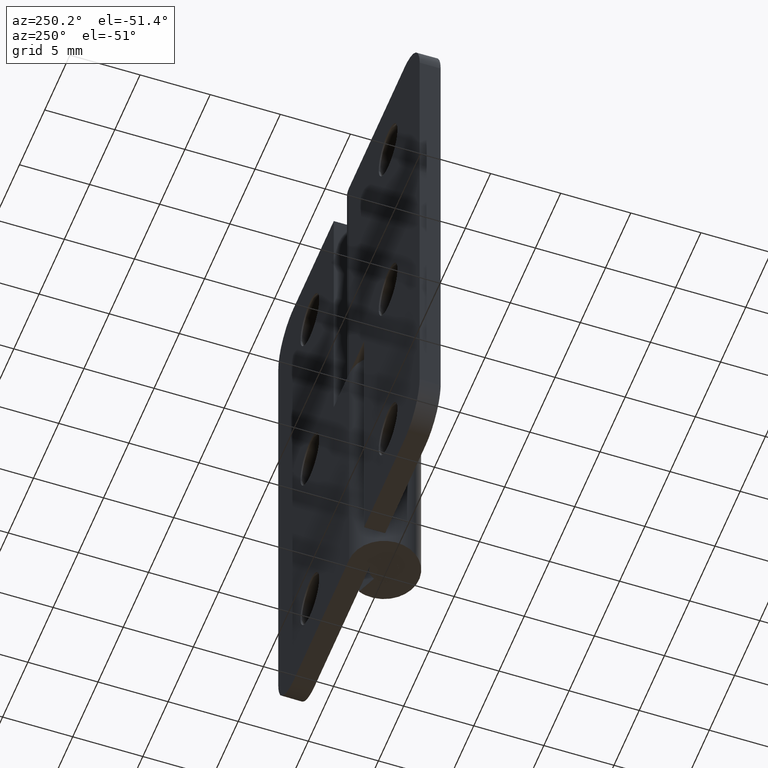
[diagram: clean part render]
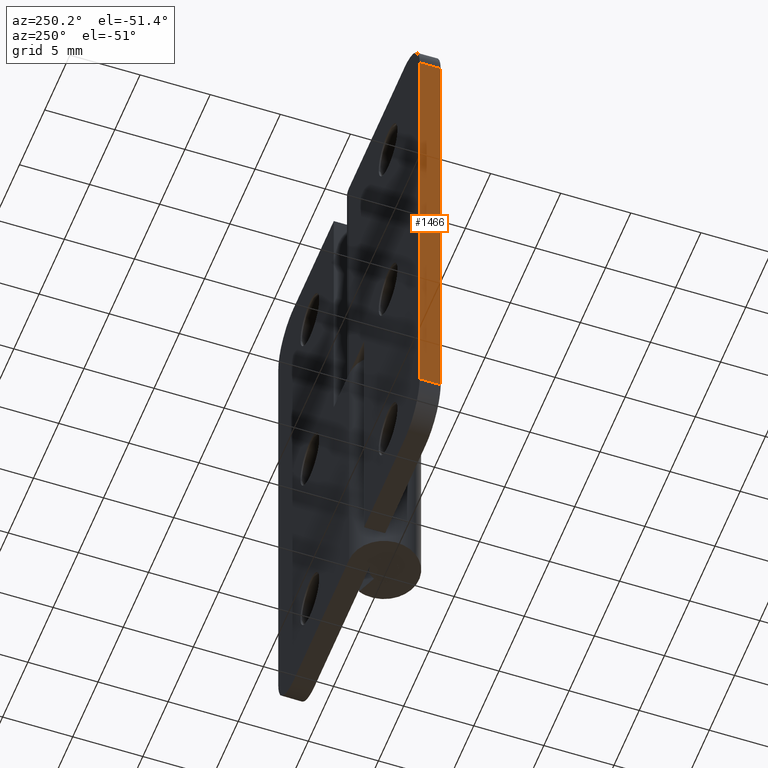
[diagram: same view with one face highlighted and labeled with its STEP entity id]
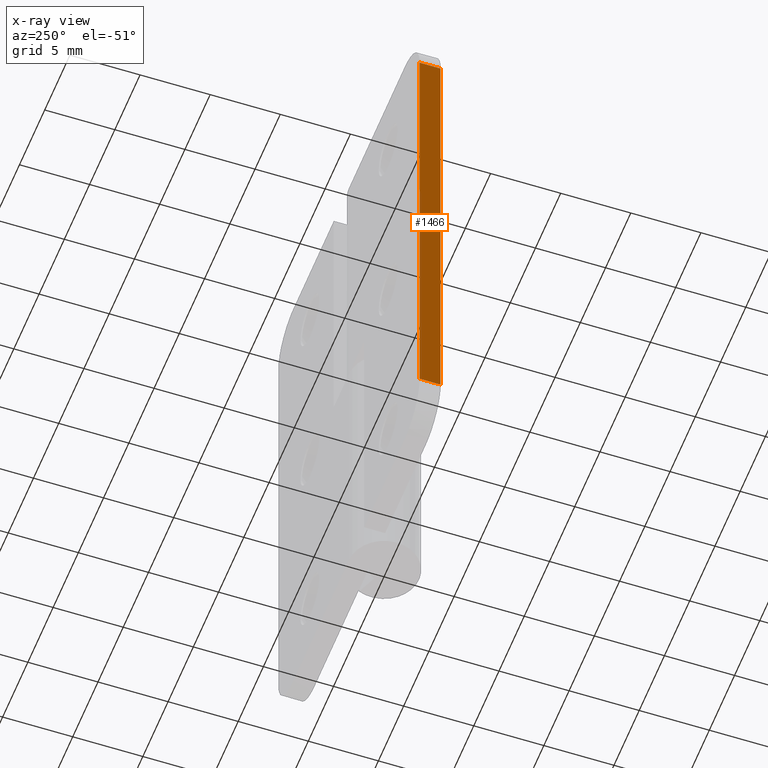
[diagram: x-ray of the same camera — body ghosted, the highlighted face saturated]
A machine part, auxiliary view. The second image highlights one B-rep face of the part: STEP entity #1466.
The next image is the same camera in x-ray: the body ghosted, the highlighted face saturated — about 0% of this face is hidden behind the body in this view.
In plain terms, the highlighted face is a freeform B-spline surface patch.
Its self-contained STEP definition (entity closure, byte-faithful):
#1196=CARTESIAN_POINT('',(-14.0,1.0,36.999991999999963));
#1197=VERTEX_POINT('',#1196);
#1220=CARTESIAN_POINT('',(-14.0,2.500000000000000,36.999991999999963));
#1221=VERTEX_POINT('',#1220);
#1235=CARTESIAN_POINT('',(-14.0,2.500000000000000,36.999991999999963));
#1236=CARTESIAN_POINT('',(-14.0,1.0,36.999991999999963));
#1237=QUASI_UNIFORM_CURVE('',1,(#1235,#1236),.UNSPECIFIED.,.F.,.U.);
#1238=EDGE_CURVE('',#1221,#1197,#1237,.T.);
#1259=CARTESIAN_POINT('',(-14.0,1.0,3.0));
#1260=VERTEX_POINT('',#1259);
#1274=CARTESIAN_POINT('',(-14.0,2.500000000000000,3.0));
#1275=VERTEX_POINT('',#1274);
#1276=CARTESIAN_POINT('',(-14.0,1.0,3.0));
#1277=CARTESIAN_POINT('',(-14.0,2.500000000000000,3.0));
#1278=QUASI_UNIFORM_CURVE('',1,(#1276,#1277),.UNSPECIFIED.,.F.,.U.);
#1279=EDGE_CURVE('',#1260,#1275,#1278,.T.);
#1447=CARTESIAN_POINT('',(-14.0,2.574924997092709,38.698292172836581));
#1448=CARTESIAN_POINT('',(-14.0,2.574924997092709,1.301699523179775));
#1449=CARTESIAN_POINT('',(-14.0,0.925074962674156,38.698292172836581));
#1450=CARTESIAN_POINT('',(-14.0,0.925074962674156,1.301699523179775));
#1451=B_SPLINE_SURFACE_WITH_KNOTS('',1,1,((#1447,#1449),(#1448,#1450)),.UNSPECIFIED.,.F.,.F.,.U.,(2,2),(2,2),(0.0,37.396592649656803),(0.041708334948495,0.958291687403247),.UNSPECIFIED.);
#1452=CARTESIAN_POINT('',(-14.0,1.0,3.0));
#1453=CARTESIAN_POINT('',(-14.0,1.0,36.999991999999963));
#1454=QUASI_UNIFORM_CURVE('',1,(#1452,#1453),.UNSPECIFIED.,.F.,.U.);
#1455=EDGE_CURVE('',#1260,#1197,#1454,.T.);
#1456=ORIENTED_EDGE('',*,*,#1455,.T.);
#1457=ORIENTED_EDGE('',*,*,#1238,.F.);
#1458=CARTESIAN_POINT('',(-14.0,2.500000000000000,3.0));
#1459=CARTESIAN_POINT('',(-14.0,2.500000000000000,36.999991999999963));
#1460=QUASI_UNIFORM_CURVE('',1,(#1458,#1459),.UNSPECIFIED.,.F.,.U.);
#1461=EDGE_CURVE('',#1275,#1221,#1460,.T.);
#1462=ORIENTED_EDGE('',*,*,#1461,.F.);
#1463=ORIENTED_EDGE('',*,*,#1279,.F.);
#1464=EDGE_LOOP('',(#1456,#1457,#1462,#1463));
#1465=FACE_OUTER_BOUND('',#1464,.T.);
#1466=ADVANCED_FACE('',(#1465),#1451,.T.);